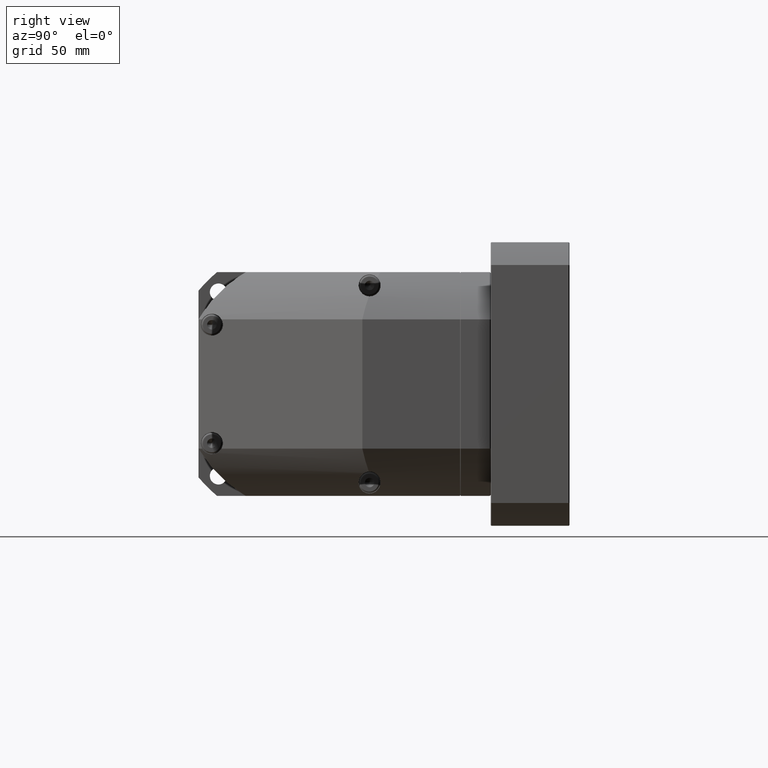
[diagram: clean part render]
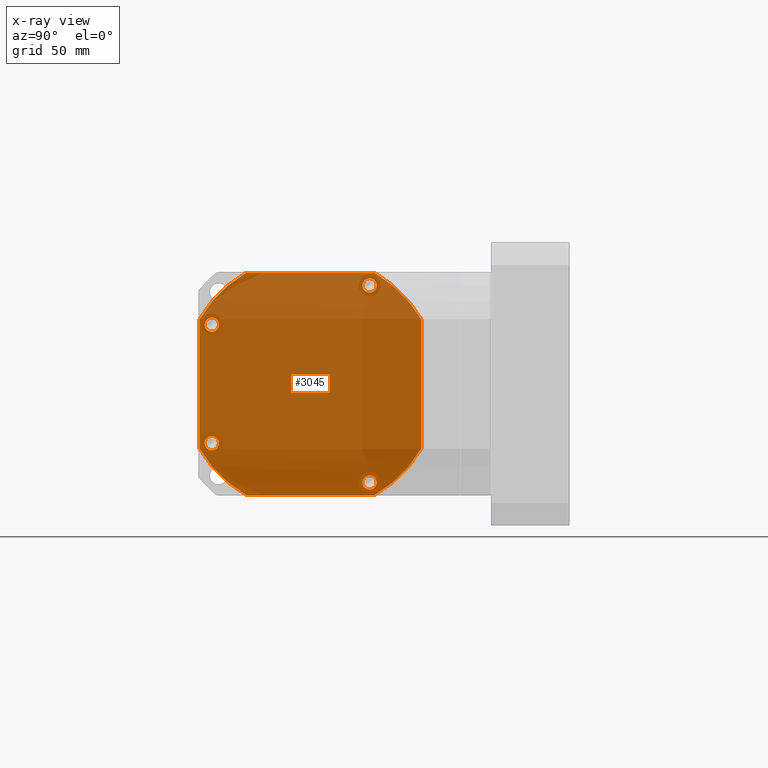
[diagram: x-ray — body ghosted, one internal face saturated and labeled with its STEP entity id]
A machine part, right view, then the same camera in x-ray: the body is ghosted and one INTERNAL B-rep face — a face not visible from any outside direction — is saturated and labeled: STEP entity #3045.
In plain terms, the highlighted planar face has unit normal (-1, 0, 0).
Its self-contained STEP definition (entity closure, byte-faithful):
#2472=DIRECTION('',(0.E0,-1.E0,0.E0));
#2473=VECTOR('',#2472,8.178019320104E1);
#2474=CARTESIAN_POINT('',(2.43E1,4.089009660052E1,-7.05E1));
#2475=LINE('',#2474,#2473);
#2495=CARTESIAN_POINT('',(2.43E1,0.E0,0.E0));
#2496=DIRECTION('',(1.E0,0.E0,0.E0));
#2497=DIRECTION('',(0.E0,8.650306748466E-1,5.017189766935E-1));
#2498=AXIS2_PLACEMENT_3D('',#2495,#2496,#2497);
#2500=CARTESIAN_POINT('',(2.43E1,0.E0,0.E0));
#2501=DIRECTION('',(1.E0,0.E0,0.E0));
#2502=DIRECTION('',(0.E0,5.017189766935E-1,-8.650306748466E-1));
#2503=AXIS2_PLACEMENT_3D('',#2500,#2501,#2502);
#2505=CARTESIAN_POINT('',(2.43E1,0.E0,0.E0));
#2506=DIRECTION('',(1.E0,0.E0,0.E0));
#2507=DIRECTION('',(0.E0,-8.650306748466E-1,-5.017189766935E-1));
#2508=AXIS2_PLACEMENT_3D('',#2505,#2506,#2507);
#2510=CARTESIAN_POINT('',(2.43E1,0.E0,0.E0));
#2511=DIRECTION('',(1.E0,0.E0,0.E0));
#2512=DIRECTION('',(0.E0,-5.017189766935E-1,8.650306748466E-1));
#2513=AXIS2_PLACEMENT_3D('',#2510,#2511,#2512);
#2515=CARTESIAN_POINT('',(2.43E1,-6.257321295125E1,3.759777946843E1));
#2516=DIRECTION('',(-1.E0,0.E0,0.E0));
#2517=DIRECTION('',(0.E0,0.E0,1.E0));
#2518=AXIS2_PLACEMENT_3D('',#2515,#2516,#2517);
#2520=CARTESIAN_POINT('',(2.43E1,-6.257321295125E1,3.759777946843E1));
#2521=DIRECTION('',(-1.E0,0.E0,0.E0));
#2522=DIRECTION('',(0.E0,0.E0,-1.E0));
#2523=AXIS2_PLACEMENT_3D('',#2520,#2521,#2522);
#2525=CARTESIAN_POINT('',(2.43E1,-6.257321295125E1,-3.759777946843E1));
#2526=DIRECTION('',(-1.E0,0.E0,0.E0));
#2527=DIRECTION('',(0.E0,0.E0,1.E0));
#2528=AXIS2_PLACEMENT_3D('',#2525,#2526,#2527);
#2530=CARTESIAN_POINT('',(2.43E1,-6.257321295125E1,-3.759777946843E1));
#2531=DIRECTION('',(-1.E0,0.E0,0.E0));
#2532=DIRECTION('',(0.E0,0.E0,-1.E0));
#2533=AXIS2_PLACEMENT_3D('',#2530,#2531,#2532);
#2535=CARTESIAN_POINT('',(2.43E1,3.759777946843E1,-6.257321295125E1));
#2536=DIRECTION('',(-1.E0,0.E0,0.E0));
#2537=DIRECTION('',(0.E0,0.E0,1.E0));
#2538=AXIS2_PLACEMENT_3D('',#2535,#2536,#2537);
#2540=CARTESIAN_POINT('',(2.43E1,3.759777946843E1,-6.257321295125E1));
#2541=DIRECTION('',(-1.E0,0.E0,0.E0));
#2542=DIRECTION('',(0.E0,0.E0,-1.E0));
#2543=AXIS2_PLACEMENT_3D('',#2540,#2541,#2542);
#2545=CARTESIAN_POINT('',(2.43E1,3.759777946843E1,6.257321295125E1));
#2546=DIRECTION('',(-1.E0,0.E0,0.E0));
#2547=DIRECTION('',(0.E0,0.E0,1.E0));
#2548=AXIS2_PLACEMENT_3D('',#2545,#2546,#2547);
#2550=CARTESIAN_POINT('',(2.43E1,3.759777946843E1,6.257321295125E1));
#2551=DIRECTION('',(-1.E0,0.E0,0.E0));
#2552=DIRECTION('',(0.E0,0.E0,-1.E0));
#2553=AXIS2_PLACEMENT_3D('',#2550,#2551,#2552);
#2673=DIRECTION('',(0.E0,0.E0,-1.E0));
#2674=VECTOR('',#2673,8.178019320104E1);
#2675=CARTESIAN_POINT('',(2.43E1,7.05E1,4.089009660052E1));
#2676=LINE('',#2675,#2674);
#2689=DIRECTION('',(0.E0,1.E0,0.E0));
#2690=VECTOR('',#2689,8.178019320104E1);
#2691=CARTESIAN_POINT('',(2.43E1,-4.089009660052E1,7.05E1));
#2692=LINE('',#2691,#2690);
#2698=CARTESIAN_POINT('',(2.43E1,-7.05E1,4.089009660052E1));
#2705=CARTESIAN_POINT('',(2.43E1,-4.089009660052E1,7.05E1));
#2716=DIRECTION('',(0.E0,0.E0,1.E0));
#2717=VECTOR('',#2716,8.178019320104E1);
#2718=CARTESIAN_POINT('',(2.43E1,-7.05E1,-4.089009660052E1));
#2719=LINE('',#2718,#2717);
#2791=CARTESIAN_POINT('',(2.43E1,4.089009660052E1,-7.05E1));
#2792=CARTESIAN_POINT('',(2.43E1,-4.089009660052E1,-7.05E1));
#2793=VERTEX_POINT('',#2791);
#2794=VERTEX_POINT('',#2792);
#2796=VERTEX_POINT('',#2698);
#2797=CARTESIAN_POINT('',(2.43E1,-7.05E1,-4.089009660052E1));
#2798=VERTEX_POINT('',#2797);
#2808=VERTEX_POINT('',#2705);
#2812=CARTESIAN_POINT('',(2.43E1,7.05E1,4.089009660052E1));
#2813=CARTESIAN_POINT('',(2.43E1,4.089009660052E1,7.05E1));
#2814=VERTEX_POINT('',#2812);
#2815=VERTEX_POINT('',#2813);
#2830=CARTESIAN_POINT('',(2.43E1,3.759777946843E1,5.807321295125E1));
#2832=VERTEX_POINT('',#2830);
#2836=CARTESIAN_POINT('',(2.43E1,-6.257321295125E1,-3.309777946843E1));
#2837=CARTESIAN_POINT('',(2.43E1,-6.257321295125E1,-4.209777946843E1));
#2838=VERTEX_POINT('',#2836);
#2839=VERTEX_POINT('',#2837);
#2842=CARTESIAN_POINT('',(2.43E1,3.759777946843E1,6.707321295125E1));
#2844=VERTEX_POINT('',#2842);
#2848=CARTESIAN_POINT('',(2.43E1,7.05E1,-4.089009660052E1));
#2849=VERTEX_POINT('',#2848);
#2850=CARTESIAN_POINT('',(2.43E1,3.759777946843E1,-5.807321295125E1));
#2851=VERTEX_POINT('',#2850);
#2852=CARTESIAN_POINT('',(2.43E1,3.759777946843E1,-6.707321295125E1));
#2853=VERTEX_POINT('',#2852);
#2858=CARTESIAN_POINT('',(2.43E1,-6.257321295125E1,3.309777946843E1));
#2859=VERTEX_POINT('',#2858);
#2867=CARTESIAN_POINT('',(2.43E1,-6.257321295125E1,4.209777946843E1));
#2868=VERTEX_POINT('',#2867);
#3001=CARTESIAN_POINT('',(2.43E1,8.2E1,0.E0));
#3002=DIRECTION('',(-1.E0,0.E0,0.E0));
#3003=DIRECTION('',(0.E0,0.E0,1.E0));
#3004=AXIS2_PLACEMENT_3D('',#3001,#3002,#3003);
#3005=PLANE('',#3004);
#3007=ORIENTED_EDGE('',*,*,#3006,.F.);
#3009=ORIENTED_EDGE('',*,*,#3008,.T.);
#3010=ORIENTED_EDGE('',*,*,#2966,.F.);
#3011=ORIENTED_EDGE('',*,*,#2982,.T.);
#3012=ORIENTED_EDGE('',*,*,#2992,.F.);
#3014=ORIENTED_EDGE('',*,*,#3013,.T.);
#3016=ORIENTED_EDGE('',*,*,#3015,.F.);
#3018=ORIENTED_EDGE('',*,*,#3017,.T.);
#3019=EDGE_LOOP('',(#3007,#3009,#3010,#3011,#3012,#3014,#3016,#3018));
#3020=FACE_OUTER_BOUND('',#3019,.F.);
#3022=ORIENTED_EDGE('',*,*,#3021,.F.);
#3024=ORIENTED_EDGE('',*,*,#3023,.F.);
#3025=EDGE_LOOP('',(#3022,#3024));
#3026=FACE_BOUND('',#3025,.F.);
#3028=ORIENTED_EDGE('',*,*,#3027,.F.);
#3030=ORIENTED_EDGE('',*,*,#3029,.F.);
#3031=EDGE_LOOP('',(#3028,#3030));
#3032=FACE_BOUND('',#3031,.F.);
#3034=ORIENTED_EDGE('',*,*,#3033,.F.);
#3036=ORIENTED_EDGE('',*,*,#3035,.F.);
#3037=EDGE_LOOP('',(#3034,#3036));
#3038=FACE_BOUND('',#3037,.F.);
#3040=ORIENTED_EDGE('',*,*,#3039,.F.);
#3042=ORIENTED_EDGE('',*,*,#3041,.F.);
#3043=EDGE_LOOP('',(#3040,#3042));
#3044=FACE_BOUND('',#3043,.F.);
#3045=ADVANCED_FACE('',(#3020,#3026,#3032,#3038,#3044),#3005,.F.);
#2499=CIRCLE('',#2498,8.15E1);
#2504=CIRCLE('',#2503,8.15E1);
#2509=CIRCLE('',#2508,8.15E1);
#2514=CIRCLE('',#2513,8.15E1);
#2519=CIRCLE('',#2518,4.5E0);
#2524=CIRCLE('',#2523,4.5E0);
#2529=CIRCLE('',#2528,4.5E0);
#2534=CIRCLE('',#2533,4.5E0);
#2539=CIRCLE('',#2538,4.5E0);
#2544=CIRCLE('',#2543,4.5E0);
#2549=CIRCLE('',#2548,4.5E0);
#2554=CIRCLE('',#2553,4.5E0);
#2966=EDGE_CURVE('',#2793,#2849,#2504,.T.);
#2982=EDGE_CURVE('',#2793,#2794,#2475,.T.);
#2992=EDGE_CURVE('',#2798,#2794,#2509,.T.);
#3006=EDGE_CURVE('',#2814,#2815,#2499,.T.);
#3008=EDGE_CURVE('',#2814,#2849,#2676,.T.);
#3013=EDGE_CURVE('',#2798,#2796,#2719,.T.);
#3015=EDGE_CURVE('',#2808,#2796,#2514,.T.);
#3017=EDGE_CURVE('',#2808,#2815,#2692,.T.);
#3021=EDGE_CURVE('',#2868,#2859,#2519,.T.);
#3023=EDGE_CURVE('',#2859,#2868,#2524,.T.);
#3027=EDGE_CURVE('',#2838,#2839,#2529,.T.);
#3029=EDGE_CURVE('',#2839,#2838,#2534,.T.);
#3033=EDGE_CURVE('',#2851,#2853,#2539,.T.);
#3035=EDGE_CURVE('',#2853,#2851,#2544,.T.);
#3039=EDGE_CURVE('',#2844,#2832,#2549,.T.);
#3041=EDGE_CURVE('',#2832,#2844,#2554,.T.);